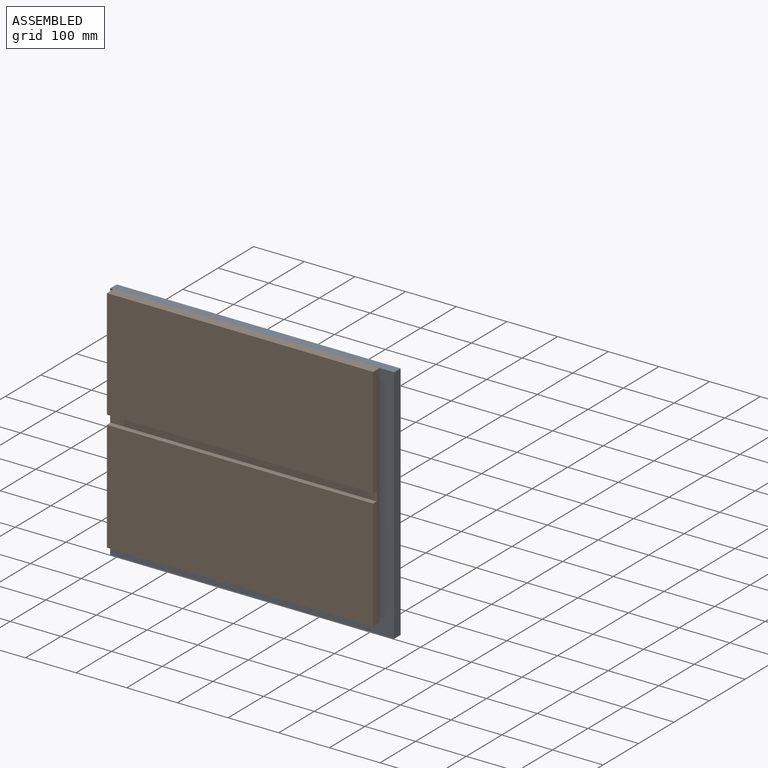
[diagram: assembled view]
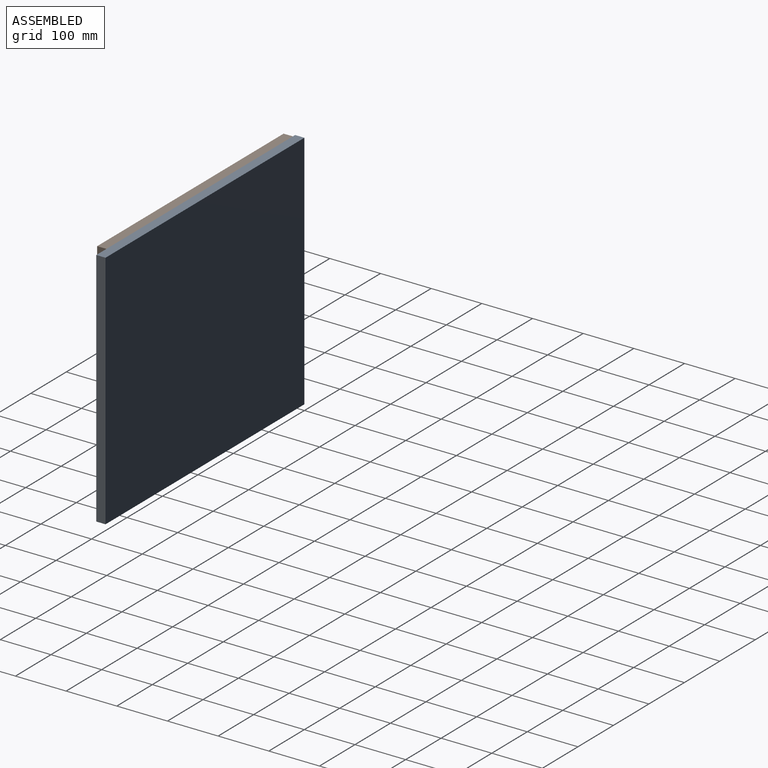
[diagram: assembled view, second angle]
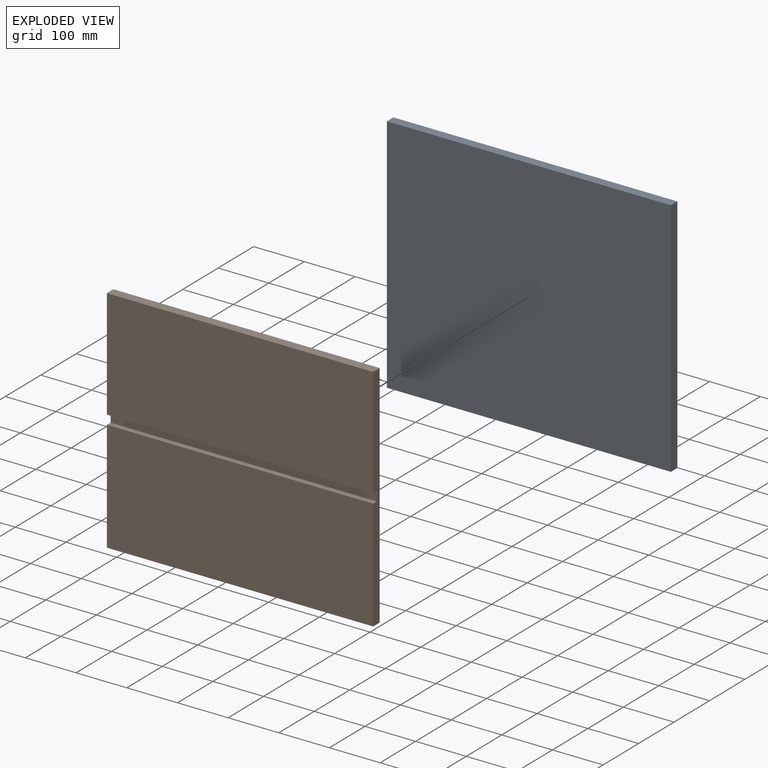
[diagram: exploded view]
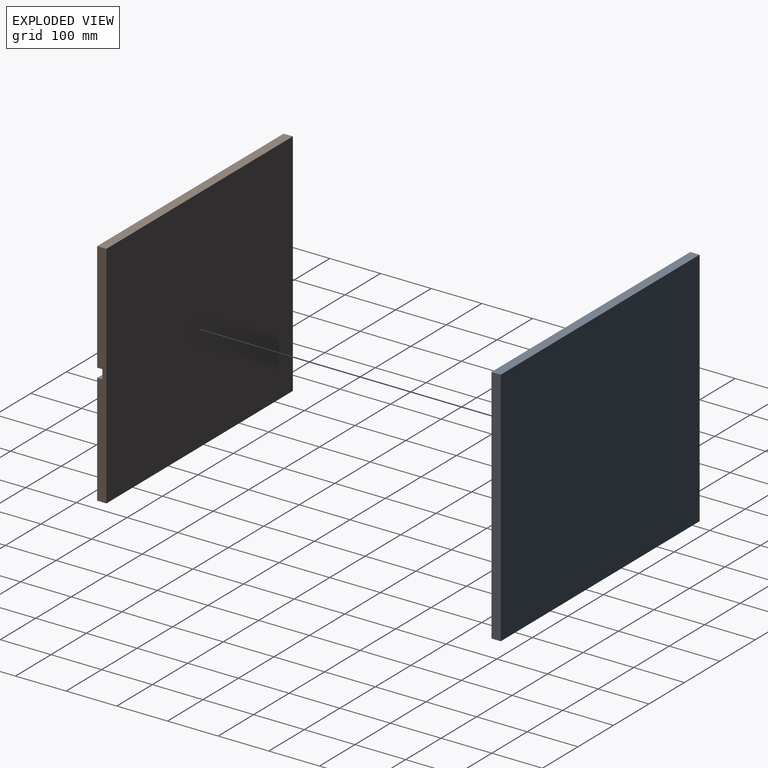
[diagram: exploded view, second angle]
ASSEMBLY  parts=2 mates=2
PART A: 6 faces, bbox 18.3x560.4x475.5 mm
  f0: plane 560.39x18.26mm, normal (0,0,1), area 10230.6mm2, adj f1,f3,f4,f5
  f1: plane 475.46x18.26mm, normal (0,-1,0), area 8680mm2, adj f0,f2,f4,f5
  f2: plane 560.39x18.26mm, normal (0,0,-1), area 10230.6mm2, adj f1,f3,f4,f5
  f3: plane 475.46x18.26mm, normal (0,1,0), area 8680mm2, adj f0,f2,f4,f5
  f4: plane 560.39x475.46mm, normal (1,0,0), area 266439.7mm2, adj f0,f1,f2,f3
  f5: plane 560.39x475.46mm, normal (-1,0,0), area 266439.7mm2, adj f0,f1,f2,f3
PART B: 10 faces, bbox 18.3x525.5x454 mm
  f0: plane 454.03x18.26mm, normal (0,1,0), area 8100.4mm2, adj f1,f3,f4,f5,f6,f7,f8,f9
  f1: plane 525.46x18.26mm, normal (0,0,1), area 9593mm2, adj f0,f2,f4,f5
  f2: plane 454.03x18.26mm, normal (0,-1,0), area 8100.4mm2, adj f1,f3,f4,f5,f6,f7,f8,f9
  f3: plane 525.46x10.32mm, normal (0,0,-1), area 5422.1mm2, adj f0,f2,f4,f9
  f4: plane 525.46x216.69mm, normal (1,0,0), area 113864.4mm2, adj f0,f1,f2,f3
  f5: plane 525.46x454.03mm, normal (-1,0,0), area 238573.1mm2, adj f0,f1,f2,f7
  f6: plane 525.46x10.32mm, normal (0,0,1), area 5422.1mm2, adj f0,f2,f8,f9
  f7: plane 525.46x18.26mm, normal (0,0,-1), area 9593mm2, adj f0,f2,f5,f8
  f8: plane 525.46x219.08mm, normal (1,0,0), area 115115.7mm2, adj f0,f2,f6,f7
  f9: plane 525.46x18.26mm, normal (1,0,0), area 9593mm2, adj f0,f2,f3,f6
PLACE A rot(axis=(0,0,-1),90deg) t=(-324.48,0,-457.45)mm
PLACE B rot(axis=(0,0,-1),90deg) t=(-335.59,-18.26,248.44)mm
MATE fastened B.f5 <-> A.f4  axis (0,1,0) through (6.35,-18.26,475.46)mm
MATE planar B.f5 <-> A.f4  axis (0,1,0) through (269.08,-18.26,248.44)mm
